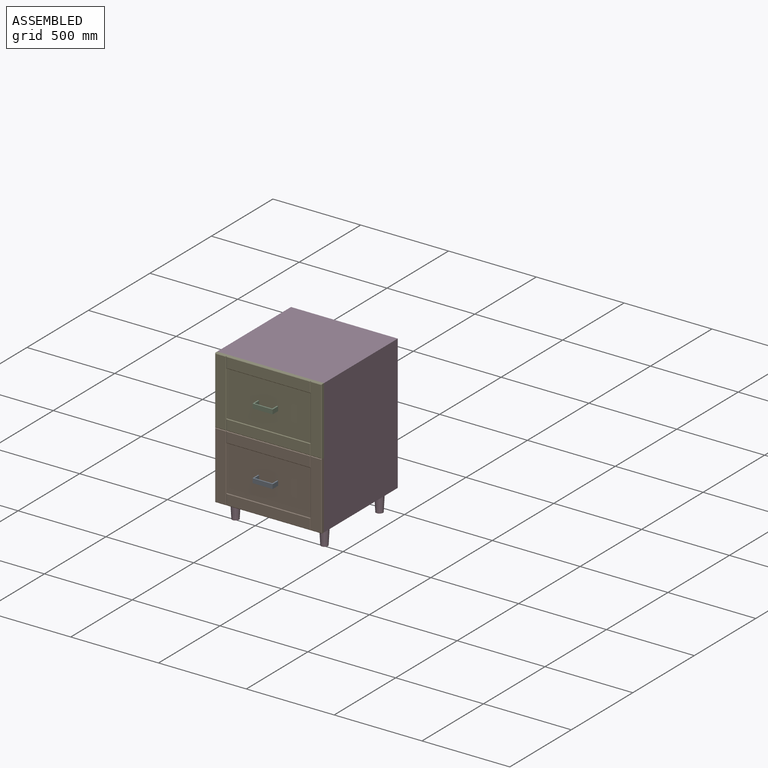
[diagram: assembled view]
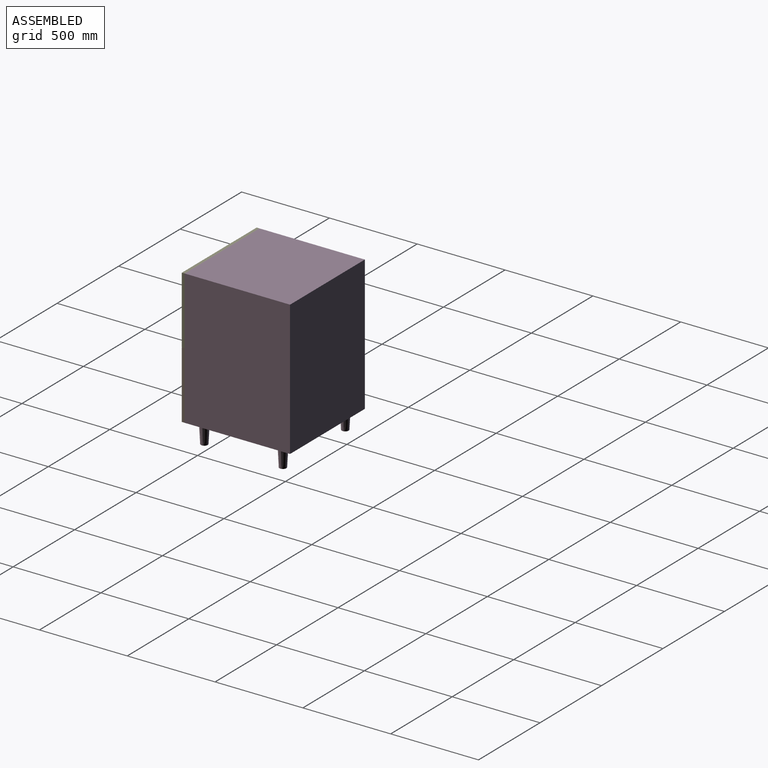
[diagram: assembled view, second angle]
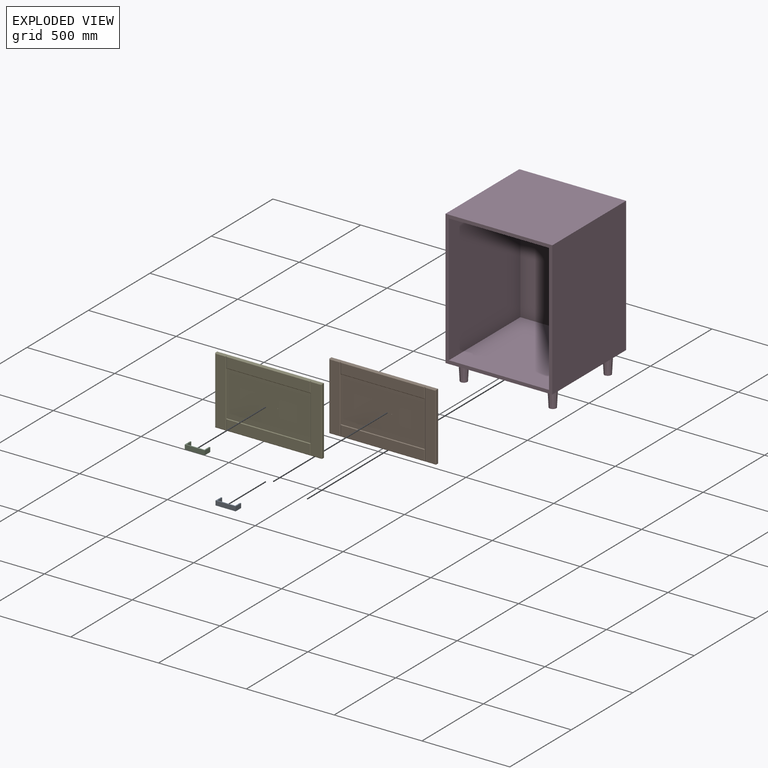
[diagram: exploded view]
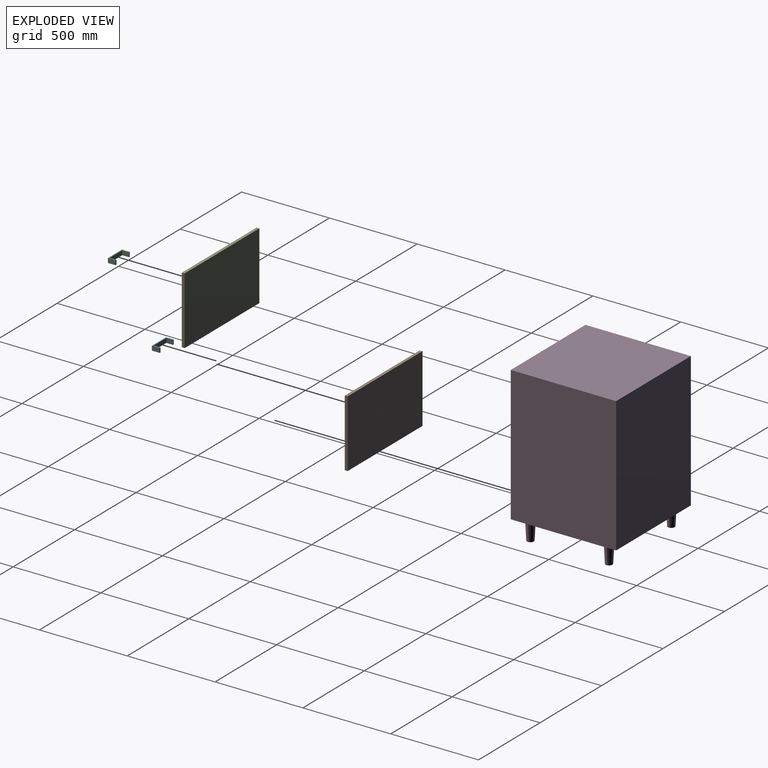
[diagram: exploded view, second angle]
ASSEMBLY  parts=5 mates=4
PART A: 10 faces, bbox 25.4x44.5x114.3 mm
  f0: plane 25.4x6.35mm, normal (0,1,0), area 161.3mm2, adj f1,f7,f8,f9
  f1: plane 44.45x25.4mm, normal (0,0,1), area 1129mm2, adj f0,f2,f8,f9
  f2: plane 114.3x25.4mm, normal (0,-1,0), area 2903.2mm2, adj f1,f3,f8,f9
  f3: plane 44.45x25.4mm, normal (0,0,-1), area 1129mm2, adj f2,f4,f8,f9
  f4: plane 25.4x6.35mm, normal (0,1,0), area 161.3mm2, adj f3,f5,f8,f9
  f5: plane 38.1x25.4mm, normal (0,0,1), area 967.7mm2, adj f4,f6,f8,f9
  f6: plane 101.6x25.4mm, normal (0,1,0), area 2580.6mm2, adj f5,f7,f8,f9
  f7: plane 38.1x25.4mm, normal (0,0,-1), area 967.7mm2, adj f0,f6,f8,f9
  f8: plane 114.3x44.45mm, normal (1,0,0), area 1209.7mm2, adj f0,f1,f2,f3,f4,f5,f6,f7
  f9: plane 114.3x44.45mm, normal (-1,0,0), area 1209.7mm2, adj f0,f1,f2,f3,f4,f5,f6,f7
PART B: 27 faces, bbox 608x19.1x384.2 mm
  f0: plane 608.01x15.88mm, normal (0,0,-1), area 9652.2mm2, adj f1,f4,f7,f10,f20,f24
  f1: plane 384.18x15.88mm, normal (1,0,0), area 6098.8mm2, adj f0,f2,f4,f5
  f2: plane 608.01x15.88mm, normal (0,0,1), area 9652.2mm2, adj f1,f4,f6,f15,f20,f23
  f3: plane 377.83x57.15mm, normal (0,-1,0), area 21592.7mm2, adj f5,f6,f7,f8
  f4: plane 608.01x384.18mm, normal (0,1,0), area 233575.3mm2, adj f0,f1,f2,f20,f26
  f5: plane 384.18x3.18mm, normal (0.71,-0.71,0), area 1710.7mm2, adj f1,f3,f6,f7
  f6: plane 63.5x3.18mm, normal (0,-0.71,0.71), area 270.9mm2, adj f2,f3,f5,f8
  f7: plane 63.5x3.18mm, normal (0,-0.71,-0.71), area 270.9mm2, adj f0,f3,f5,f8
  f8: plane 384.18x3.18mm, normal (-0.71,-0.71,0), area 1710.7mm2, adj f3,f6,f7,f12,f17,f19
  f9: plane 474.66x57.15mm, normal (0,-1,0), area 27127mm2, adj f10,f11,f12,f13
  f10: plane 481.01x3.18mm, normal (0,-0.71,-0.71), area 2145.6mm2, adj f0,f9,f11,f12
  f11: plane 63.5x3.18mm, normal (-0.71,-0.71,0), area 270.9mm2, adj f9,f10,f13,f25
  f12: plane 63.5x3.18mm, normal (0.71,-0.71,0), area 270.9mm2, adj f8,f9,f10,f13
  f13: plane 481.01x3.18mm, normal (0,-0.71,0.71), area 2145.6mm2, adj f9,f11,f12,f19
  f14: plane 474.66x57.15mm, normal (0,-1,0), area 27127mm2, adj f15,f16,f17,f18
  f15: plane 481.01x3.18mm, normal (0,-0.71,0.71), area 2145.6mm2, adj f2,f14,f16,f17
  f16: plane 63.5x3.18mm, normal (-0.71,-0.71,0), area 270.9mm2, adj f14,f15,f18,f25
  f17: plane 63.5x3.18mm, normal (0.71,-0.71,0), area 270.9mm2, adj f8,f14,f15,f18
  f18: plane 481.01x3.18mm, normal (0,-0.71,-0.71), area 2145.6mm2, adj f14,f16,f17,f19
  f19: plane 481.01x257.18mm, normal (0,-1,0), area 123696.5mm2, adj f8,f13,f18,f25,f26
  f20: plane 384.18x15.88mm, normal (-1,0,0), area 6098.8mm2, adj f0,f2,f4,f22
  f21: plane 377.83x57.15mm, normal (0,-1,0), area 21592.7mm2, adj f22,f23,f24,f25
  f22: plane 384.18x3.18mm, normal (-0.71,-0.71,0), area 1710.7mm2, adj f20,f21,f23,f24
  f23: plane 63.5x3.18mm, normal (0,-0.71,0.71), area 270.9mm2, adj f2,f21,f22,f25
  f24: plane 63.5x3.18mm, normal (0,-0.71,-0.71), area 270.9mm2, adj f0,f21,f22,f25
  f25: plane 384.18x3.18mm, normal (0.71,-0.71,0), area 1710.7mm2, adj f11,f16,f19,f21,f23,f24
  f26: cylinder r=1.59mm len=15.88mm, axis (0,-1,0), area 158.3mm2, adj f4,f19
PART C: same geometry as A
PART D: 19 faces, bbox 608x600.1x876.3 mm
  f0: plane 768.35x608.01mm, normal (0,-1,0), area 50987.8mm2, adj f1,f2,f3,f4,f6,f7,f8,f9
  f1: plane 608.01x600.08mm, normal (0,0,1), area 364853.1mm2, adj f0,f2,f4,f5
  f2: plane 768.35x600.08mm, normal (-1,0,0), area 461067.6mm2, adj f0,f1,f3,f5
  f3: plane 608.01x600.08mm, normal (0,0,-1), area 356745.8mm2, adj f0,f2,f4,f5,f11,f13,f15,f17
  f4: plane 768.35x600.08mm, normal (1,0,0), area 461067.6mm2, adj f0,f1,f3,f5
  f5: plane 768.35x608.01mm, normal (0,1,0), area 467166.4mm2, adj f1,f2,f3,f4
  f6: plane 581.03x569.91mm, normal (0,0,-1), area 331133.4mm2, adj f0,f7,f9,f10
  f7: plane 730.25x581.03mm, normal (1,0,0), area 424293.5mm2, adj f0,f6,f8,f10
  f8: plane 581.03x569.91mm, normal (0,0,1), area 331133.4mm2, adj f0,f7,f9,f10
  f9: plane 730.25x581.03mm, normal (-1,0,0), area 424293.5mm2, adj f0,f6,f8,f10
  f10: plane 730.25x569.91mm, normal (0,-1,0), area 416178.6mm2, adj f6,f7,f8,f9
  f11: cone r=25.4mm half-angle=3deg, axis (0,0,1), area 15330.4mm2, adj f3,f12
  f12: plane 39.49x39.49mm, normal (0,0,-1), area 1224.5mm2, adj f11
  f13: cone r=25.4mm half-angle=3deg, axis (0,0,1), area 15330.4mm2, adj f3,f14
  f14: plane 39.49x39.49mm, normal (0,0,-1), area 1224.5mm2, adj f13
  f15: cone r=25.4mm half-angle=3deg, axis (0,0,1), area 15330.4mm2, adj f3,f16
  f16: plane 39.49x39.49mm, normal (0,0,-1), area 1224.5mm2, adj f15
  f17: cone r=25.4mm half-angle=3deg, axis (0,0,1), area 15330.4mm2, adj f3,f18
  f18: plane 39.49x39.49mm, normal (0,0,-1), area 1224.5mm2, adj f17
PART E: same geometry as B
PLACE A rot(axis=(0,1,0),90deg) t=(-294.48,-615.95,300.04)mm
PLACE B rot(axis=(0,1,0),0deg) t=(-3267.71,-600.07,488.95)mm
PLACE C rot(axis=(0,1,0),90deg) t=(-294.48,-615.95,684.21)mm
PLACE D rot(axis=(0,1,0),0deg) t=(-646.11,-600.07,107.95)mm fixed
PLACE E rot(axis=(0,1,0),0deg) t=(-3267.71,-600.07,873.12)mm
MATE fastened A.f0 <-> B.f26  axis (0,1,0) through (-291.31,-615.95,300.04)mm
MATE fastened E.f26 <-> C.f0  axis (0,-1,0) through (-291.31,-615.95,684.21)mm
MATE fastened E.f4 <-> D.f0  axis (0,1,0) through (-646.11,-600.07,876.3)mm
MATE fastened D.f0 <-> B.f4  axis (0,-1,0) through (-38.1,-600.07,107.95)mm
